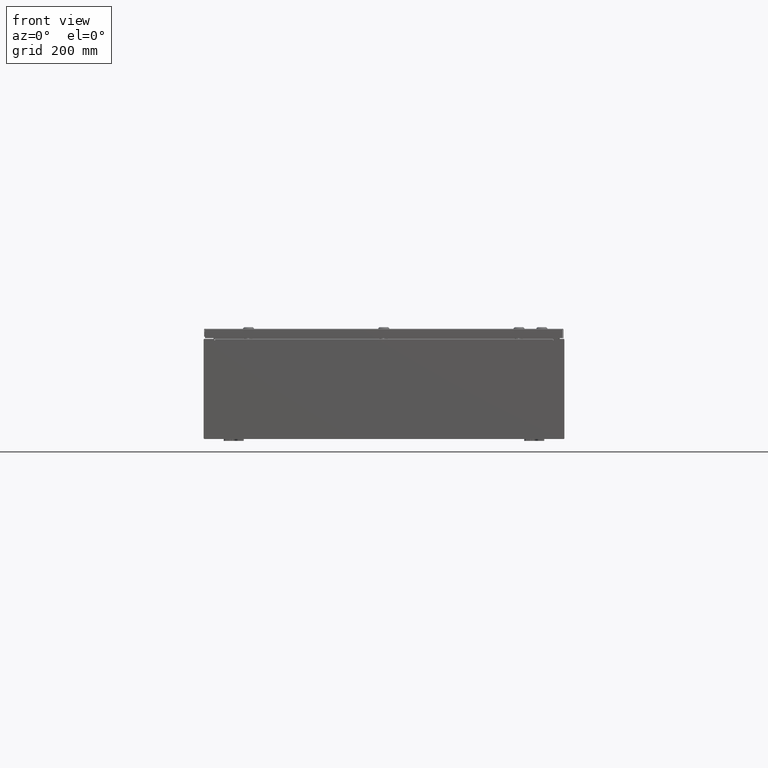
[diagram: clean part render]
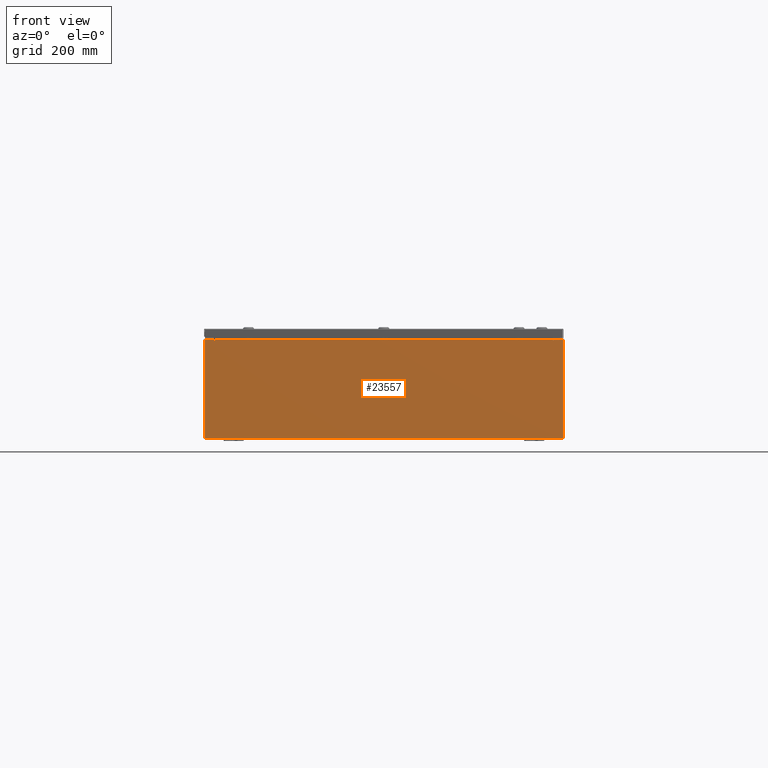
[diagram: same view with one face highlighted and labeled with its STEP entity id]
A machine part, front view. The second image highlights one B-rep face of the part: STEP entity #23557.
In plain terms, the highlighted planar face has unit normal (-0, 1, -0).
Its self-contained STEP definition (entity closure, byte-faithful):
#466 = DIRECTION ( 'NONE',  ( -0.0000000000000000000, -0.0000000000000000000, 1.000000000000000000 ) ) ;
#995 = EDGE_CURVE ( 'NONE', #52117, #67364, #58207, .T. ) ;
#1176 = ORIENTED_EDGE ( 'NONE', *, *, #63706, .F. ) ;
#1753 = CARTESIAN_POINT ( 'NONE',  ( -16.88720000000000000, -0.0000000000000000000, 0.0000000000000000000 ) ) ;
#3114 = ORIENTED_EDGE ( 'NONE', *, *, #8240, .T. ) ;
#3252 = EDGE_CURVE ( 'NONE', #49187, #47249, #49687, .T. ) ;
#3436 = CIRCLE ( 'NONE', #32480, 0.01867499999999949400 ) ;
#4606 = VERTEX_POINT ( 'NONE', #64256 ) ;
#4813 = EDGE_CURVE ( 'NONE', #47249, #60706, #48134, .T. ) ;
#5542 = VECTOR ( 'NONE', #43909, 39.37007874015748100 ) ;
#5866 = LINE ( 'NONE', #1753, #30931 ) ;
#6966 = CARTESIAN_POINT ( 'NONE',  ( -16.90587499999999800, 0.0000000000000000000, 4.874950000000000100 ) ) ;
#7589 = VECTOR ( 'NONE', #52510, 39.37007874015748100 ) ;
#7720 = CARTESIAN_POINT ( 'NONE',  ( -16.92454999999999600, -0.0000000000000000000, 0.0000000000000000000 ) ) ;
#8240 = EDGE_CURVE ( 'NONE', #10607, #26972, #59643, .T. ) ;
#8568 = CARTESIAN_POINT ( 'NONE',  ( 16.92455000000000000, 0.0000000000000000000, 4.874950000000000100 ) ) ;
#10607 = VERTEX_POINT ( 'NONE', #55523 ) ;
#11527 = VECTOR ( 'NONE', #53021, 39.37007874015748100 ) ;
#12380 = LINE ( 'NONE', #7720, #53320 ) ;
#12951 = CARTESIAN_POINT ( 'NONE',  ( -17.92530000000000000, 0.0000000000000000000, 4.925300000000000000 ) ) ;
#13394 = ORIENTED_EDGE ( 'NONE', *, *, #4813, .T. ) ;
#14433 = AXIS2_PLACEMENT_3D ( 'NONE', #23292, #60708, #28679 ) ;
#14615 = ORIENTED_EDGE ( 'NONE', *, *, #16262, .F. ) ;
#14912 = VECTOR ( 'NONE', #28772, 39.37007874015748100 ) ;
#15651 = DIRECTION ( 'NONE',  ( -1.000000000000000000, -0.0000000000000000000, -0.0000000000000000000 ) ) ;
#16262 = EDGE_CURVE ( 'NONE', #10607, #16745, #36605, .T. ) ;
#16745 = VERTEX_POINT ( 'NONE', #8568 ) ;
#18535 = VERTEX_POINT ( 'NONE', #35424 ) ;
#19526 = CARTESIAN_POINT ( 'NONE',  ( 16.90587500000000200, 0.0000000000000000000, 4.874950000000000100 ) ) ;
#19912 = EDGE_LOOP ( 'NONE', ( #65905, #65514, #52851, #54171, #35452, #1176, #14615, #3114, #56683, #21501, #24650, #13394 ) ) ;
#20461 = CARTESIAN_POINT ( 'NONE',  ( 16.88720000000000000, 0.0000000000000000000, 0.0000000000000000000 ) ) ;
#21224 = VECTOR ( 'NONE', #466, 39.37007874015748100 ) ;
#21501 = ORIENTED_EDGE ( 'NONE', *, *, #40306, .T. ) ;
#23292 = CARTESIAN_POINT ( 'NONE',  ( 0.0000000000000000000, 0.0000000000000000000, 0.0000000000000000000 ) ) ;
#23391 = CARTESIAN_POINT ( 'NONE',  ( -16.88720000000000000, -7.171100983368691200E-016, 4.912300000000000100 ) ) ;
#23557 = ADVANCED_FACE ( 'NONE', ( #44996 ), #55307, .F. ) ;
#23962 = DIRECTION ( 'NONE',  ( 0.0000000000000000000, 0.0000000000000000000, -1.000000000000000000 ) ) ;
#24345 = EDGE_CURVE ( 'NONE', #35447, #52117, #5866, .T. ) ;
#24467 = LINE ( 'NONE', #47871, #36993 ) ;
#24650 = ORIENTED_EDGE ( 'NONE', *, *, #3252, .T. ) ;
#24898 = DIRECTION ( 'NONE',  ( 0.0000000000000000000, 0.0000000000000000000, -1.000000000000000000 ) ) ;
#26093 = DIRECTION ( 'NONE',  ( -0.0000000000000000000, 1.000000000000000000, -0.0000000000000000000 ) ) ;
#26972 = VERTEX_POINT ( 'NONE', #63849 ) ;
#27321 = CARTESIAN_POINT ( 'NONE',  ( -17.92530000000000000, 0.0000000000000000000, 4.925300000000000000 ) ) ;
#28679 = DIRECTION ( 'NONE',  ( 0.0000000000000000000, -0.0000000000000000000, -1.000000000000000000 ) ) ;
#28772 = DIRECTION ( 'NONE',  ( 1.000000000000000000, 0.0000000000000000000, 0.0000000000000000000 ) ) ;
#28873 = CARTESIAN_POINT ( 'NONE',  ( -16.88720000000000000, -0.0000000000000000000, 4.874950000000000100 ) ) ;
#29145 = LINE ( 'NONE', #23391, #14912 ) ;
#30931 = VECTOR ( 'NONE', #60629, 39.37007874015748100 ) ;
#32480 = AXIS2_PLACEMENT_3D ( 'NONE', #19526, #56934, #24898 ) ;
#35424 = CARTESIAN_POINT ( 'NONE',  ( 16.88720000000000000, 0.0000000000000000000, 4.874950000000000100 ) ) ;
#35447 = VERTEX_POINT ( 'NONE', #36434 ) ;
#35452 = ORIENTED_EDGE ( 'NONE', *, *, #63971, .F. ) ;
#36434 = CARTESIAN_POINT ( 'NONE',  ( -16.88720000000000000, -7.171100983368691200E-016, 4.912300000000000100 ) ) ;
#36605 = LINE ( 'NONE', #58160, #11527 ) ;
#36993 = VECTOR ( 'NONE', #15651, 39.37007874015748100 ) ;
#40306 = EDGE_CURVE ( 'NONE', #44832, #49187, #24467, .T. ) ;
#43909 = DIRECTION ( 'NONE',  ( 1.000000000000000000, 0.0000000000000000000, 0.0000000000000000000 ) ) ;
#43954 = CARTESIAN_POINT ( 'NONE',  ( -16.92454999999999600, 0.0000000000000000000, 4.874950000000000100 ) ) ;
#44385 = CARTESIAN_POINT ( 'NONE',  ( -16.92454999999999600, 0.0000000000000000000, 4.925300000000000000 ) ) ;
#44832 = VERTEX_POINT ( 'NONE', #62556 ) ;
#44996 = FACE_OUTER_BOUND ( 'NONE', #19912, .T. ) ;
#45046 = DIRECTION ( 'NONE',  ( 0.0000000000000000000, 0.0000000000000000000, 1.000000000000000000 ) ) ;
#47249 = VERTEX_POINT ( 'NONE', #12951 ) ;
#47871 = CARTESIAN_POINT ( 'NONE',  ( -17.92530000000000000, 0.0000000000000000000, -4.925300000000000000 ) ) ;
#48134 = LINE ( 'NONE', #27321, #5542 ) ;
#49048 = CARTESIAN_POINT ( 'NONE',  ( -17.92530000000000000, 0.0000000000000000000, 4.925300000000000000 ) ) ;
#49187 = VERTEX_POINT ( 'NONE', #61841 ) ;
#49687 = LINE ( 'NONE', #49048, #21224 ) ;
#50352 = CARTESIAN_POINT ( 'NONE',  ( 17.92530000000000000, 0.0000000000000000000, 4.925300000000000000 ) ) ;
#51874 = LINE ( 'NONE', #20461, #7589 ) ;
#52117 = VERTEX_POINT ( 'NONE', #28873 ) ;
#52510 = DIRECTION ( 'NONE',  ( 0.0000000000000000000, 0.0000000000000000000, 1.000000000000000000 ) ) ;
#52851 = ORIENTED_EDGE ( 'NONE', *, *, #24345, .F. ) ;
#53021 = DIRECTION ( 'NONE',  ( -8.681145560800009800E-014, 0.0000000000000000000, -1.000000000000000000 ) ) ;
#53320 = VECTOR ( 'NONE', #45046, 39.37007874015748100 ) ;
#53879 = CARTESIAN_POINT ( 'NONE',  ( -17.92530000000000000, 0.0000000000000000000, 4.925300000000000000 ) ) ;
#54171 = ORIENTED_EDGE ( 'NONE', *, *, #67475, .T. ) ;
#55307 = PLANE ( 'NONE',  #14433 ) ;
#55523 = CARTESIAN_POINT ( 'NONE',  ( 16.92455000000000000, 0.0000000000000000000, 4.925300000000000000 ) ) ;
#55741 = DIRECTION ( 'NONE',  ( 0.0000000000000000000, 0.0000000000000000000, -1.000000000000000000 ) ) ;
#56384 = VECTOR ( 'NONE', #55741, 39.37007874015748100 ) ;
#56683 = ORIENTED_EDGE ( 'NONE', *, *, #59392, .T. ) ;
#56934 = DIRECTION ( 'NONE',  ( -0.0000000000000000000, 1.000000000000000000, -0.0000000000000000000 ) ) ;
#57958 = VECTOR ( 'NONE', #59286, 39.37007874015748100 ) ;
#58160 = CARTESIAN_POINT ( 'NONE',  ( 16.92454999999957700, -0.0000000000000000000, -1.469244821010341400E-012 ) ) ;
#58207 = CIRCLE ( 'NONE', #62472, 0.01867499999999949400 ) ;
#59286 = DIRECTION ( 'NONE',  ( 1.000000000000000000, 0.0000000000000000000, 0.0000000000000000000 ) ) ;
#59392 = EDGE_CURVE ( 'NONE', #26972, #44832, #68909, .T. ) ;
#59643 = LINE ( 'NONE', #53879, #57958 ) ;
#60629 = DIRECTION ( 'NONE',  ( 0.0000000000000000000, 0.0000000000000000000, -1.000000000000000000 ) ) ;
#60706 = VERTEX_POINT ( 'NONE', #44385 ) ;
#60708 = DIRECTION ( 'NONE',  ( 0.0000000000000000000, -1.000000000000000000, 0.0000000000000000000 ) ) ;
#61841 = CARTESIAN_POINT ( 'NONE',  ( -17.92530000000000000, 0.0000000000000000000, -4.925300000000000000 ) ) ;
#62472 = AXIS2_PLACEMENT_3D ( 'NONE', #6966, #26093, #23962 ) ;
#62556 = CARTESIAN_POINT ( 'NONE',  ( 17.92530000000000000, 0.0000000000000000000, -4.925300000000000000 ) ) ;
#63706 = EDGE_CURVE ( 'NONE', #16745, #18535, #3436, .T. ) ;
#63849 = CARTESIAN_POINT ( 'NONE',  ( 17.92530000000000000, 0.0000000000000000000, 4.925300000000000000 ) ) ;
#63971 = EDGE_CURVE ( 'NONE', #18535, #4606, #51874, .T. ) ;
#64256 = CARTESIAN_POINT ( 'NONE',  ( 16.88720000000000000, 0.0000000000000000000, 4.912300000000000100 ) ) ;
#65514 = ORIENTED_EDGE ( 'NONE', *, *, #995, .F. ) ;
#65905 = ORIENTED_EDGE ( 'NONE', *, *, #68097, .F. ) ;
#67364 = VERTEX_POINT ( 'NONE', #43954 ) ;
#67475 = EDGE_CURVE ( 'NONE', #35447, #4606, #29145, .T. ) ;
#68097 = EDGE_CURVE ( 'NONE', #67364, #60706, #12380, .T. ) ;
#68909 = LINE ( 'NONE', #50352, #56384 ) ;